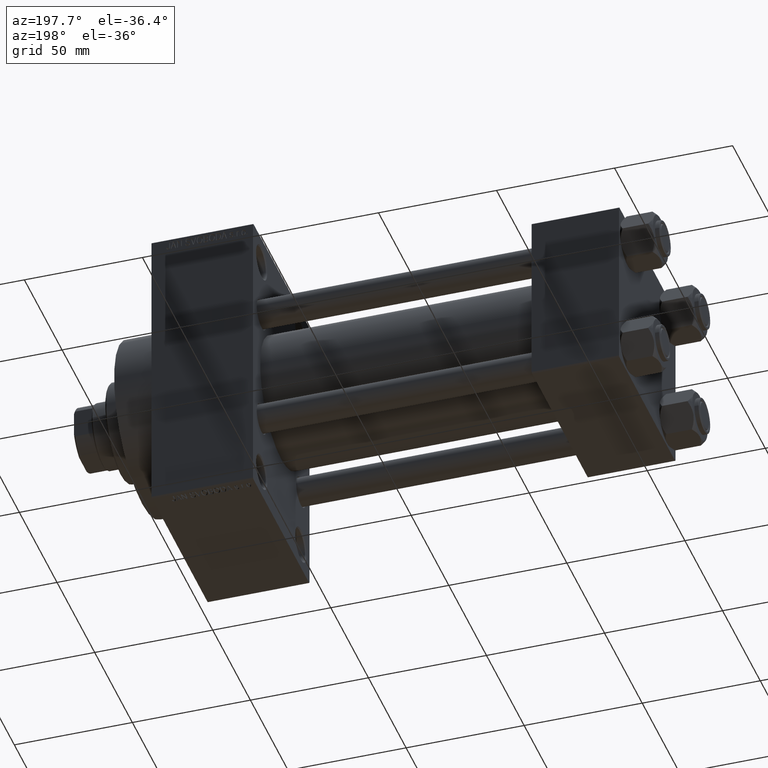
[diagram: clean part render]
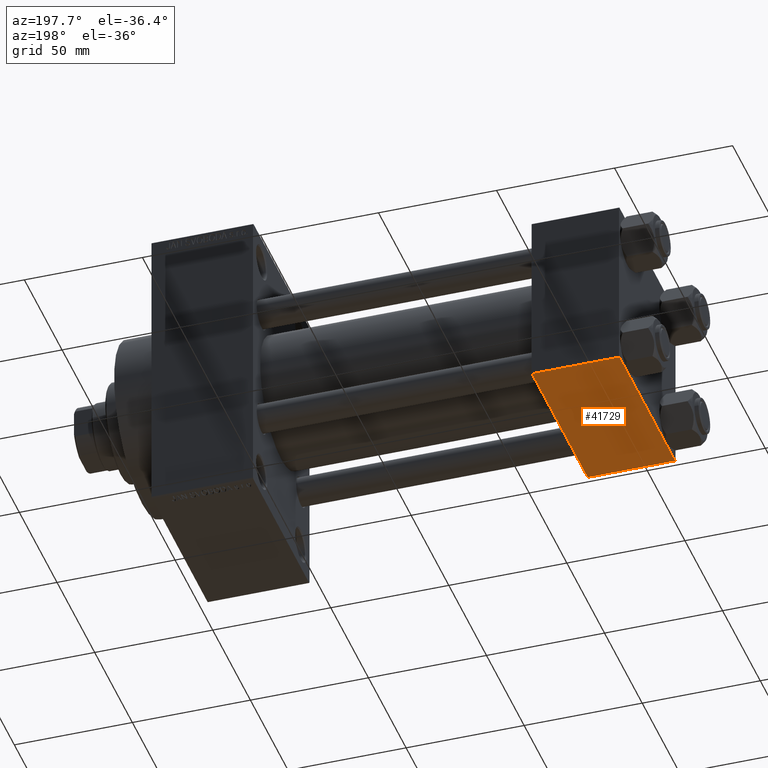
[diagram: same view with one face highlighted and labeled with its STEP entity id]
A machine part, auxiliary view. The second image highlights one B-rep face of the part: STEP entity #41729.
In plain terms, the highlighted planar face has unit normal (0, 0, -1).
Its self-contained STEP definition (entity closure, byte-faithful):
#1909 = VECTOR ( 'NONE', #2917, 1000.000000000000000 ) ;
#1997 = CARTESIAN_POINT ( 'NONE',  ( 37.00000000000000000, -37.00000000000002132, -37.50000000000000711 ) ) ;
#2776 = PLANE ( 'NONE',  #32584 ) ;
#2917 = DIRECTION ( 'NONE',  ( -1.000000000000000000, 0.000000000000000000, 0.000000000000000000 ) ) ;
#5163 = EDGE_CURVE ( 'NONE', #47439, #7039, #30196, .T. ) ;
#5369 = EDGE_CURVE ( 'NONE', #47439, #6745, #6890, .T. ) ;
#6745 = VERTEX_POINT ( 'NONE', #14561 ) ;
#6890 = LINE ( 'NONE', #11198, #38402 ) ;
#7039 = VERTEX_POINT ( 'NONE', #29146 ) ;
#7222 = LINE ( 'NONE', #20905, #1909 ) ;
#8758 = CARTESIAN_POINT ( 'NONE',  ( 0.000000000000000000, 36.99999999999997868, -37.50000000000000000 ) ) ;
#11198 = CARTESIAN_POINT ( 'NONE',  ( 37.00000000000000000, 36.99999999999997868, -37.50000000000000000 ) ) ;
#12869 = CARTESIAN_POINT ( 'NONE',  ( 37.00000000000000000, 37.49999999999999289, -37.50000000000000000 ) ) ;
#14084 = DIRECTION ( 'NONE',  ( 1.000000000000000000, 0.000000000000000000, 0.000000000000000000 ) ) ;
#14561 = CARTESIAN_POINT ( 'NONE',  ( 37.00000000000000000, 36.99999999999997868, -37.50000000000000000 ) ) ;
#16031 = DIRECTION ( 'NONE',  ( 0.000000000000000000, -1.000000000000000000, -9.251858538542972814E-17 ) ) ;
#16444 = DIRECTION ( 'NONE',  ( 0.000000000000000000, -1.000000000000000000, -9.251858538542972814E-17 ) ) ;
#17001 = ORIENTED_EDGE ( 'NONE', *, *, #5163, .F. ) ;
#18105 = DIRECTION ( 'NONE',  ( 0.000000000000000000, 1.000000000000000000, 9.251858538542972814E-17 ) ) ;
#18911 = CARTESIAN_POINT ( 'NONE',  ( 0.000000000000000000, 37.49999999999999289, -37.50000000000000000 ) ) ;
#20439 = EDGE_LOOP ( 'NONE', ( #17001, #26665, #36096, #37792 ) ) ;
#20905 = CARTESIAN_POINT ( 'NONE',  ( 0.000000000000000000, -37.00000000000002132, -37.50000000000000711 ) ) ;
#23421 = LINE ( 'NONE', #12869, #29904 ) ;
#26665 = ORIENTED_EDGE ( 'NONE', *, *, #5369, .T. ) ;
#29146 = CARTESIAN_POINT ( 'NONE',  ( 0.000000000000000000, -37.00000000000002132, -37.50000000000000711 ) ) ;
#29904 = VECTOR ( 'NONE', #16444, 1000.000000000000000 ) ;
#30196 = LINE ( 'NONE', #18911, #35353 ) ;
#32584 = AXIS2_PLACEMENT_3D ( 'NONE', #35891, #39735, #18105 ) ;
#34455 = VERTEX_POINT ( 'NONE', #1997 ) ;
#35353 = VECTOR ( 'NONE', #16031, 1000.000000000000000 ) ;
#35891 = CARTESIAN_POINT ( 'NONE',  ( 37.00000000000000000, 37.49999999999999289, -37.50000000000000000 ) ) ;
#35999 = EDGE_CURVE ( 'NONE', #6745, #34455, #23421, .T. ) ;
#36096 = ORIENTED_EDGE ( 'NONE', *, *, #35999, .T. ) ;
#37792 = ORIENTED_EDGE ( 'NONE', *, *, #40489, .T. ) ;
#38402 = VECTOR ( 'NONE', #14084, 1000.000000000000000 ) ;
#39735 = DIRECTION ( 'NONE',  ( 0.000000000000000000, 9.251858538542972814E-17, -1.000000000000000000 ) ) ;
#40489 = EDGE_CURVE ( 'NONE', #34455, #7039, #7222, .T. ) ;
#41729 = ADVANCED_FACE ( 'NONE', ( #42839 ), #2776, .T. ) ;
#42839 = FACE_OUTER_BOUND ( 'NONE', #20439, .T. ) ;
#47439 = VERTEX_POINT ( 'NONE', #8758 ) ;